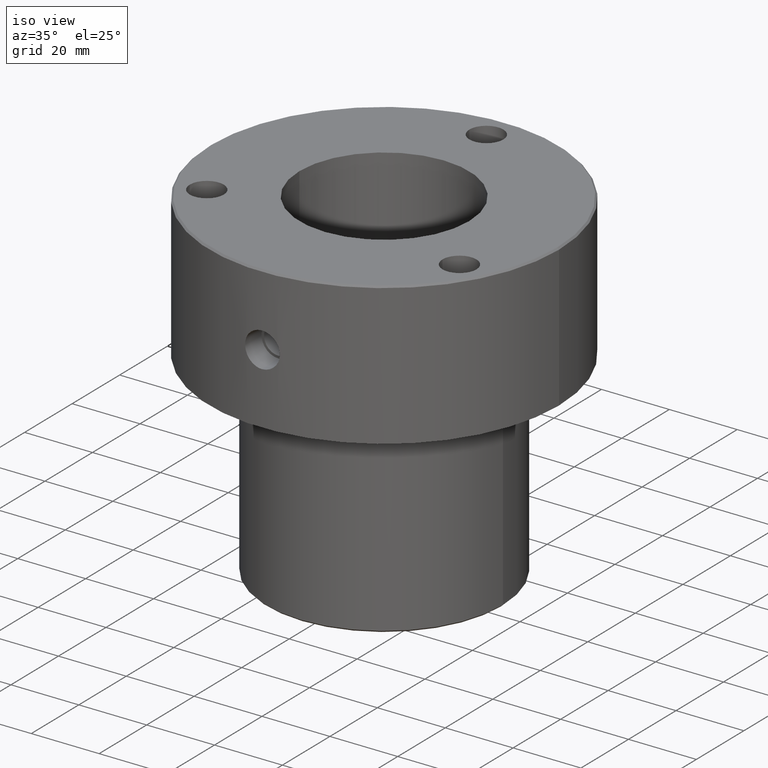
[diagram: clean part render]
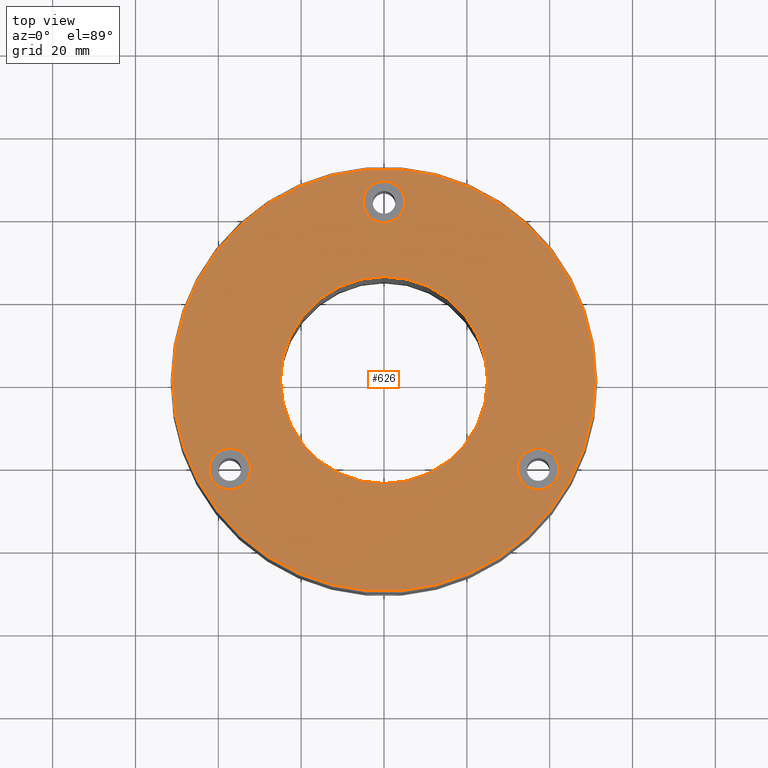
[diagram: tour spotlight — one face highlighted and labeled with its STEP entity id]
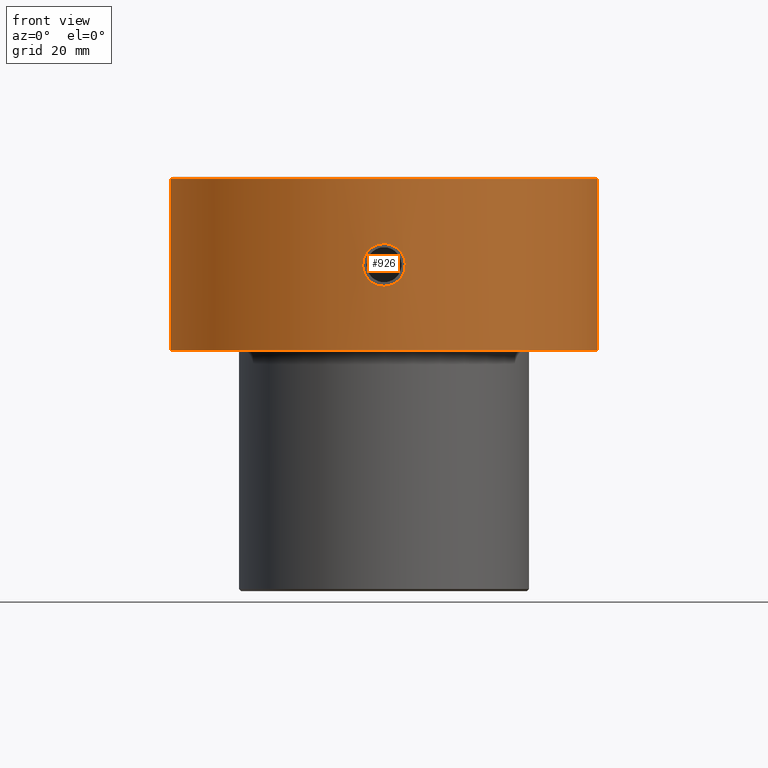
[diagram: tour spotlight — one face highlighted and labeled with its STEP entity id]
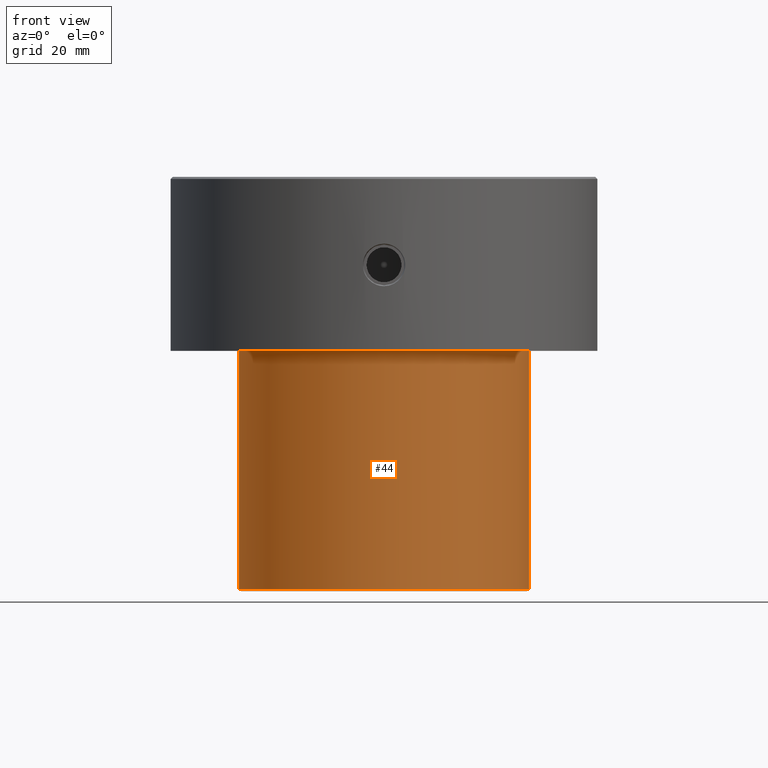
[diagram: tour spotlight — one face highlighted and labeled with its STEP entity id]
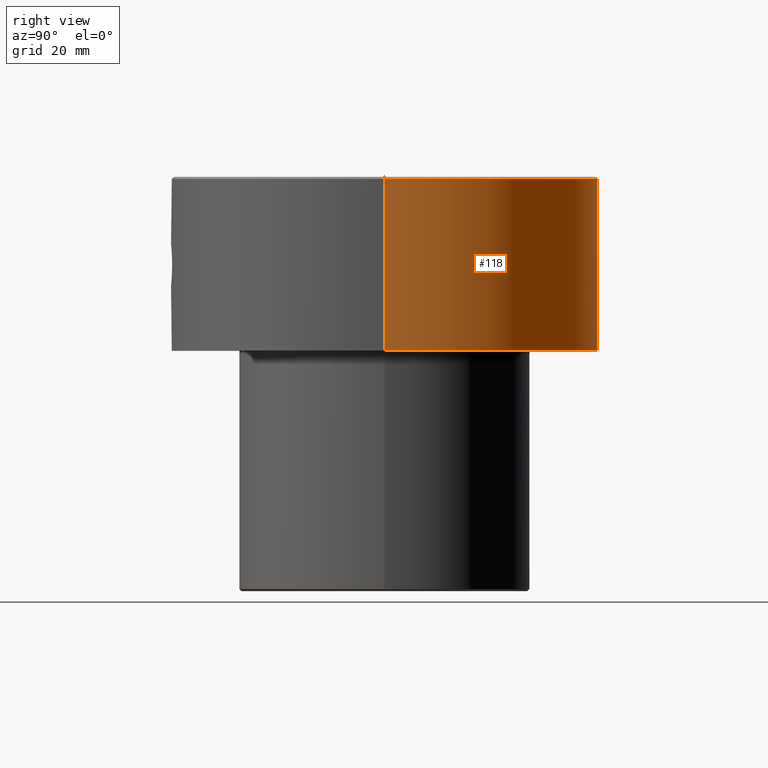
[diagram: tour spotlight — one face highlighted and labeled with its STEP entity id]
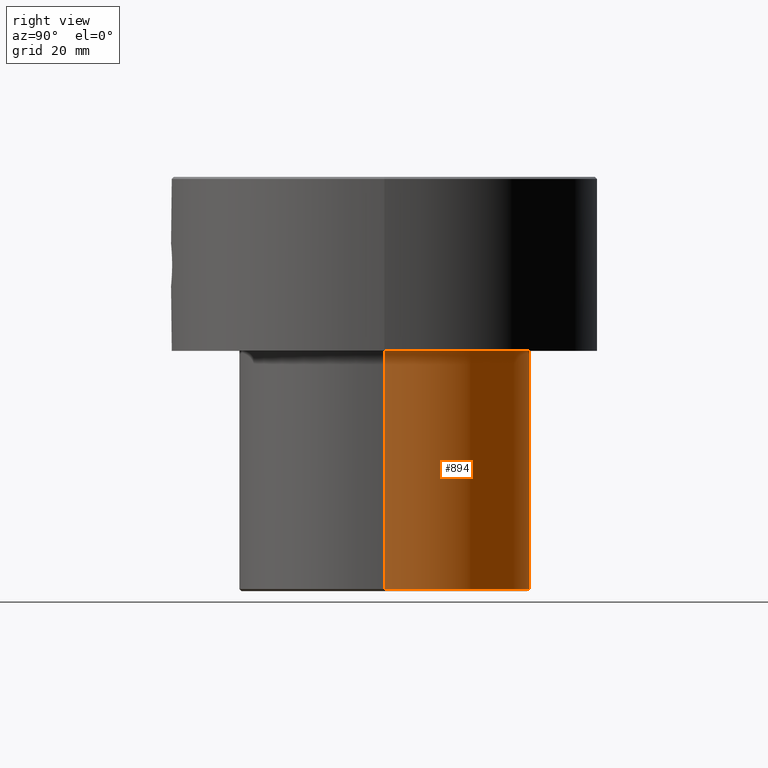
[diagram: tour spotlight — one face highlighted and labeled with its STEP entity id]
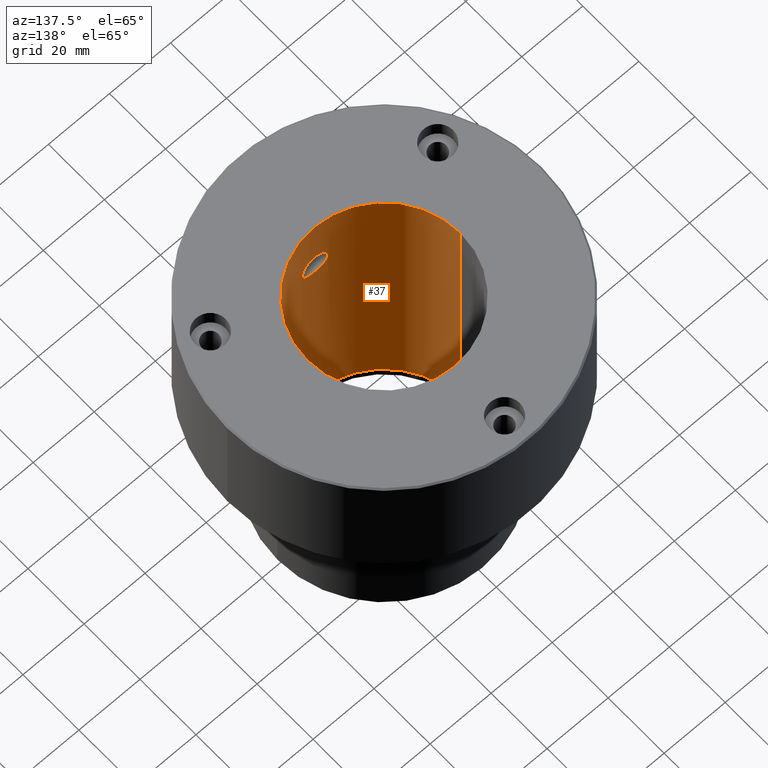
[diagram: tour spotlight — one face highlighted and labeled with its STEP entity id]
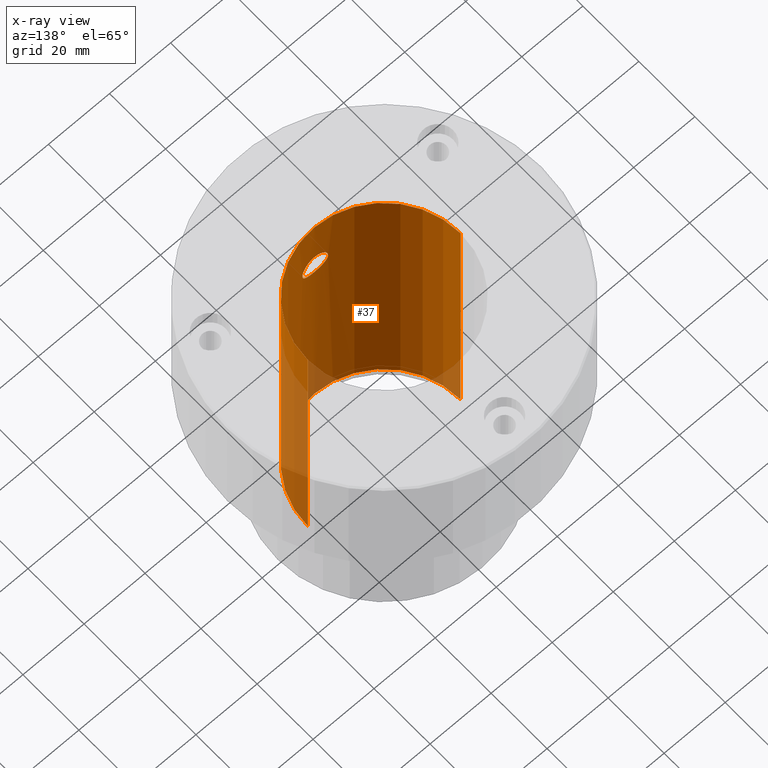
[diagram: x-ray of the same camera — body ghosted, this tour face saturated]
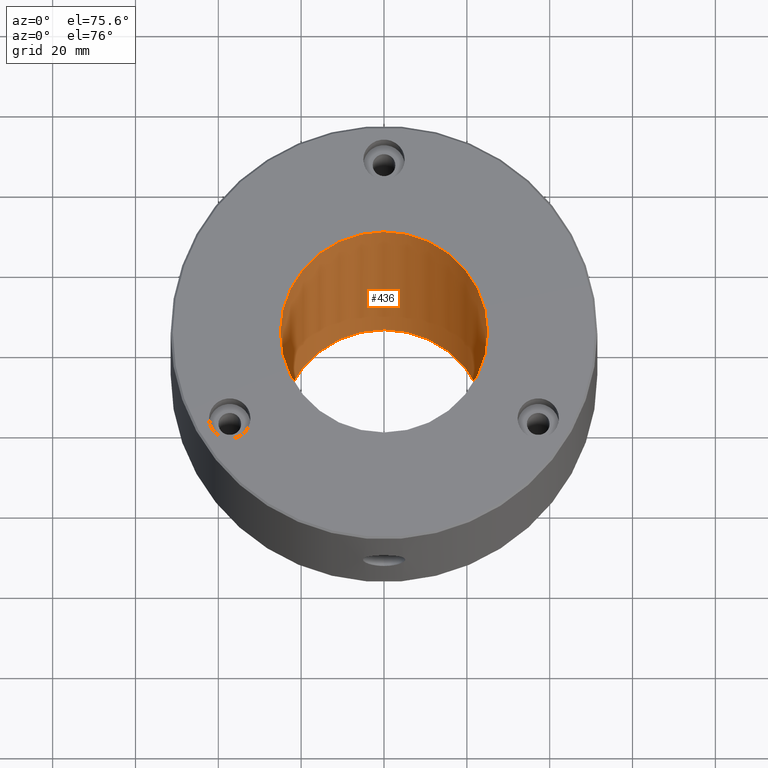
[diagram: tour spotlight — one face highlighted and labeled with its STEP entity id]
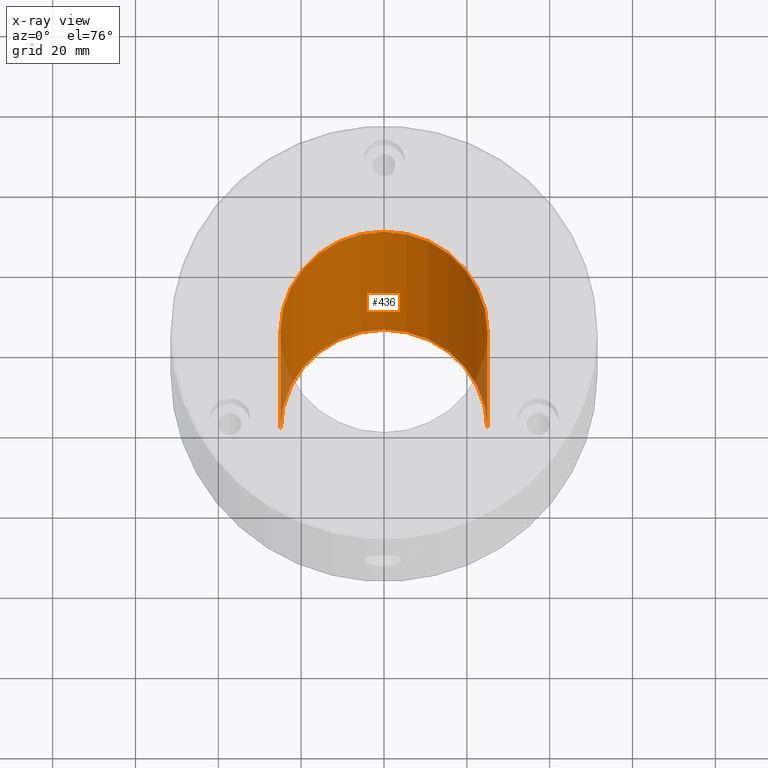
[diagram: x-ray of the same camera — body ghosted, this tour face saturated]
A machine part: a face-by-face anatomy tour. The part has 36 B-rep faces; the first image is the clean iso view, then the 7 largest visible faces are spotlighted one at a time (largest first), each with its STEP entity span.

Face 1 — top view, entity #626. In plain terms, the highlighted planar face has unit normal (0, -0, 1).
Definition (entity closure, byte-faithful):
#8 = DIRECTION ( 'NONE',  ( 1.000000000000000000, 0.000000000000000000, 0.000000000000000000 ) ) ;
#25 = EDGE_LOOP ( 'NONE', ( #722, #236 ) ) ;
#36 = EDGE_CURVE ( 'NONE', #702, #916, #262, .T. ) ;
#40 = DIRECTION ( 'NONE',  ( 1.000000000000000000, 0.000000000000000000, 0.000000000000000000 ) ) ;
#48 = EDGE_CURVE ( 'NONE', #355, #813, #206, .T. ) ;
#90 = DIRECTION ( 'NONE',  ( 1.000000000000000000, 0.000000000000000000, 0.000000000000000000 ) ) ;
#97 = CARTESIAN_POINT ( 'NONE',  ( 0.000000000000000000, 43.00000000000000000, 0.000000000000000000 ) ) ;
#101 = CARTESIAN_POINT ( 'NONE',  ( 0.000000000000000000, 0.000000000000000000, 0.000000000000000000 ) ) ;
#114 = DIRECTION ( 'NONE',  ( -0.000000000000000000, -0.000000000000000000, 1.000000000000000000 ) ) ;
#143 = EDGE_LOOP ( 'NONE', ( #428, #283 ) ) ;
#148 = CIRCLE ( 'NONE', #903, 5.000000000000000888 ) ;
#158 = DIRECTION ( 'NONE',  ( -0.000000000000000000, -0.000000000000000000, 1.000000000000000000 ) ) ;
#168 = CARTESIAN_POINT ( 'NONE',  ( 37.23909236273076573, -21.50000000000015987, 0.000000000000000000 ) ) ;
#183 = CARTESIAN_POINT ( 'NONE',  ( 37.23909236273076573, -21.50000000000015987, 0.000000000000000000 ) ) ;
#185 = VERTEX_POINT ( 'NONE', #536 ) ;
#189 = CIRCLE ( 'NONE', #557, 51.00000000000001421 ) ;
#206 = CIRCLE ( 'NONE', #882, 5.000000000000000888 ) ;
#214 = ORIENTED_EDGE ( 'NONE', *, *, #48, .F. ) ;
#220 = DIRECTION ( 'NONE',  ( 1.000000000000000000, 0.000000000000000000, 0.000000000000000000 ) ) ;
#236 = ORIENTED_EDGE ( 'NONE', *, *, #733, .F. ) ;
#261 = ORIENTED_EDGE ( 'NONE', *, *, #1249, .T. ) ;
#262 = CIRCLE ( 'NONE', #285, 51.00000000000001421 ) ;
#275 = DIRECTION ( 'NONE',  ( -1.000000000000000000, 0.000000000000000000, 0.000000000000000000 ) ) ;
#277 = CARTESIAN_POINT ( 'NONE',  ( 5.000000000000000888, 43.00000000000000000, 0.000000000000000000 ) ) ;
#283 = ORIENTED_EDGE ( 'NONE', *, *, #328, .F. ) ;
#285 = AXIS2_PLACEMENT_3D ( 'NONE', #988, #698, #220 ) ;
#300 = DIRECTION ( 'NONE',  ( -0.000000000000000000, -0.000000000000000000, 1.000000000000000000 ) ) ;
#328 = EDGE_CURVE ( 'NONE', #185, #983, #387, .T. ) ;
#339 = FACE_OUTER_BOUND ( 'NONE', #542, .T. ) ;
#347 = CIRCLE ( 'NONE', #938, 25.00000000000000000 ) ;
#355 = VERTEX_POINT ( 'NONE', #277 ) ;
#364 = AXIS2_PLACEMENT_3D ( 'NONE', #646, #158, #757 ) ;
#387 = CIRCLE ( 'NONE', #725, 5.000000000000004441 ) ;
#394 = CARTESIAN_POINT ( 'NONE',  ( 0.000000000000000000, 0.000000000000000000, 0.000000000000000000 ) ) ;
#402 = DIRECTION ( 'NONE',  ( 0.000000000000000000, 0.000000000000000000, -1.000000000000000000 ) ) ;
#428 = ORIENTED_EDGE ( 'NONE', *, *, #877, .F. ) ;
#498 = CARTESIAN_POINT ( 'NONE',  ( 0.000000000000000000, 0.000000000000000000, 0.000000000000000000 ) ) ;
#506 = DIRECTION ( 'NONE',  ( 1.000000000000000000, 0.000000000000000000, 0.000000000000000000 ) ) ;
#518 = CARTESIAN_POINT ( 'NONE',  ( 0.000000000000000000, 43.00000000000000000, 0.000000000000000000 ) ) ;
#525 = FACE_BOUND ( 'NONE', #25, .T. ) ;
#536 = CARTESIAN_POINT ( 'NONE',  ( 32.23909236273075862, -21.50000000000015987, 0.000000000000000000 ) ) ;
#542 = EDGE_LOOP ( 'NONE', ( #1179, #261 ) ) ;
#557 = AXIS2_PLACEMENT_3D ( 'NONE', #498, #300, #8 ) ;
#568 = DIRECTION ( 'NONE',  ( 1.000000000000000000, 0.000000000000000000, 0.000000000000000000 ) ) ;
#572 = DIRECTION ( 'NONE',  ( 1.000000000000000000, 0.000000000000000000, 0.000000000000000000 ) ) ;
#577 = AXIS2_PLACEMENT_3D ( 'NONE', #168, #760, #568 ) ;
#582 = DIRECTION ( 'NONE',  ( 0.000000000000000000, 0.000000000000000000, -1.000000000000000000 ) ) ;
#590 = EDGE_LOOP ( 'NONE', ( #214, #1066 ) ) ;
#595 = DIRECTION ( 'NONE',  ( -0.000000000000000000, -0.000000000000000000, 1.000000000000000000 ) ) ;
#626 = ADVANCED_FACE ( 'NONE', ( #525, #1232, #853, #1210, #339 ), #860, .T. ) ;
#631 = ORIENTED_EDGE ( 'NONE', *, *, #1148, .T. ) ;
#646 = CARTESIAN_POINT ( 'NONE',  ( -37.23909236273090073, -21.49999999999991118, 0.000000000000000000 ) ) ;
#655 = CIRCLE ( 'NONE', #577, 5.000000000000004441 ) ;
#670 = CARTESIAN_POINT ( 'NONE',  ( -42.23909236273090784, -21.49999999999991118, 0.000000000000000000 ) ) ;
#686 = CARTESIAN_POINT ( 'NONE',  ( 0.000000000000000000, 0.000000000000000000, 0.000000000000000000 ) ) ;
#688 = CARTESIAN_POINT ( 'NONE',  ( 51.00000000000001421, 6.276314845630186598E-15, 0.000000000000000000 ) ) ;
#692 = DIRECTION ( 'NONE',  ( -1.000000000000000000, 0.000000000000000000, 0.000000000000000000 ) ) ;
#698 = DIRECTION ( 'NONE',  ( -0.000000000000000000, -0.000000000000000000, 1.000000000000000000 ) ) ;
#702 = VERTEX_POINT ( 'NONE', #1077 ) ;
#722 = ORIENTED_EDGE ( 'NONE', *, *, #769, .F. ) ;
#725 = AXIS2_PLACEMENT_3D ( 'NONE', #183, #952, #1143 ) ;
#733 = EDGE_CURVE ( 'NONE', #1177, #1239, #1175, .T. ) ;
#757 = DIRECTION ( 'NONE',  ( 1.000000000000000000, 0.000000000000000000, 0.000000000000000000 ) ) ;
#760 = DIRECTION ( 'NONE',  ( -0.000000000000000000, -0.000000000000000000, 1.000000000000000000 ) ) ;
#764 = EDGE_LOOP ( 'NONE', ( #631, #792 ) ) ;
#769 = EDGE_CURVE ( 'NONE', #1239, #1177, #806, .T. ) ;
#792 = ORIENTED_EDGE ( 'NONE', *, *, #1189, .T. ) ;
#806 = CIRCLE ( 'NONE', #364, 5.000000000000004441 ) ;
#813 = VERTEX_POINT ( 'NONE', #1215 ) ;
#853 = FACE_BOUND ( 'NONE', #590, .T. ) ;
#860 = PLANE ( 'NONE',  #1056 ) ;
#874 = CARTESIAN_POINT ( 'NONE',  ( -32.23909236273090073, -21.49999999999991118, 0.000000000000000000 ) ) ;
#877 = EDGE_CURVE ( 'NONE', #983, #185, #655, .T. ) ;
#882 = AXIS2_PLACEMENT_3D ( 'NONE', #518, #906, #40 ) ;
#888 = CARTESIAN_POINT ( 'NONE',  ( -25.00000000000000000, 0.000000000000000000, 0.000000000000000000 ) ) ;
#903 = AXIS2_PLACEMENT_3D ( 'NONE', #97, #595, #572 ) ;
#906 = DIRECTION ( 'NONE',  ( -0.000000000000000000, -0.000000000000000000, 1.000000000000000000 ) ) ;
#916 = VERTEX_POINT ( 'NONE', #688 ) ;
#921 = AXIS2_PLACEMENT_3D ( 'NONE', #101, #582, #275 ) ;
#938 = AXIS2_PLACEMENT_3D ( 'NONE', #686, #402, #692 ) ;
#952 = DIRECTION ( 'NONE',  ( -0.000000000000000000, -0.000000000000000000, 1.000000000000000000 ) ) ;
#969 = DIRECTION ( 'NONE',  ( 0.000000000000000000, -0.000000000000000000, 1.000000000000000000 ) ) ;
#983 = VERTEX_POINT ( 'NONE', #995 ) ;
#984 = CARTESIAN_POINT ( 'NONE',  ( -37.23909236273090073, -21.49999999999991118, 0.000000000000000000 ) ) ;
#988 = CARTESIAN_POINT ( 'NONE',  ( 0.000000000000000000, 0.000000000000000000, 0.000000000000000000 ) ) ;
#995 = CARTESIAN_POINT ( 'NONE',  ( 42.23909236273076573, -21.50000000000015987, 0.000000000000000000 ) ) ;
#1034 = AXIS2_PLACEMENT_3D ( 'NONE', #984, #114, #506 ) ;
#1056 = AXIS2_PLACEMENT_3D ( 'NONE', #394, #969, #90 ) ;
#1066 = ORIENTED_EDGE ( 'NONE', *, *, #1188, .F. ) ;
#1077 = CARTESIAN_POINT ( 'NONE',  ( -51.00000000000001421, 0.000000000000000000, 0.000000000000000000 ) ) ;
#1143 = DIRECTION ( 'NONE',  ( 1.000000000000000000, 0.000000000000000000, 0.000000000000000000 ) ) ;
#1148 = EDGE_CURVE ( 'NONE', #1152, #1212, #1244, .T. ) ;
#1152 = VERTEX_POINT ( 'NONE', #888 ) ;
#1159 = CARTESIAN_POINT ( 'NONE',  ( 25.00000000000000000, 3.061616997868383043E-15, 0.000000000000000000 ) ) ;
#1175 = CIRCLE ( 'NONE', #1034, 5.000000000000004441 ) ;
#1177 = VERTEX_POINT ( 'NONE', #670 ) ;
#1179 = ORIENTED_EDGE ( 'NONE', *, *, #36, .T. ) ;
#1188 = EDGE_CURVE ( 'NONE', #813, #355, #148, .T. ) ;
#1189 = EDGE_CURVE ( 'NONE', #1212, #1152, #347, .T. ) ;
#1210 = FACE_BOUND ( 'NONE', #764, .T. ) ;
#1212 = VERTEX_POINT ( 'NONE', #1159 ) ;
#1215 = CARTESIAN_POINT ( 'NONE',  ( -5.000000000000000888, 43.00000000000000000, 0.000000000000000000 ) ) ;
#1232 = FACE_BOUND ( 'NONE', #143, .T. ) ;
#1239 = VERTEX_POINT ( 'NONE', #874 ) ;
#1244 = CIRCLE ( 'NONE', #921, 25.00000000000000000 ) ;
#1249 = EDGE_CURVE ( 'NONE', #916, #702, #189, .T. ) ;

Face 2 — front view, entity #926. In plain terms, the highlighted cylindrical surface (partial cylindrical patch) has radius 51.5 mm, axis along (-0, -0, 1).
Definition (entity closure, byte-faithful):
#28 = DIRECTION ( 'NONE',  ( 1.000000000000000000, 0.000000000000000000, 0.000000000000000000 ) ) ;
#53 = LINE ( 'NONE', #632, #360 ) ;
#56 = CARTESIAN_POINT ( 'NONE',  ( -3.870388291433632499, -51.35491700579432006, -24.64766394908491520 ) ) ;
#62 = CARTESIAN_POINT ( 'NONE',  ( 4.457634637478083306, -51.30705923410508262, -23.82621273787369631 ) ) ;
#66 = CARTESIAN_POINT ( 'NONE',  ( -4.459652610896620573, -51.30688883444945958, -23.82304282523870143 ) ) ;
#72 = CARTESIAN_POINT ( 'NONE',  ( 1.048222593639576067E-21, -51.50000000000000000, -26.39337300000000042 ) ) ;
#78 = CARTESIAN_POINT ( 'NONE',  ( 4.615458871489047432, -51.29292689371413161, -23.53081845748871359 ) ) ;
#86 = FACE_OUTER_BOUND ( 'NONE', #902, .T. ) ;
#93 = CARTESIAN_POINT ( 'NONE',  ( 0.3358835663762500534, -51.50000000000001421, -16.10662700000000314 ) ) ;
#110 = DIRECTION ( 'NONE',  ( 1.000000000000000000, 0.000000000000000000, 0.000000000000000000 ) ) ;
#132 = CARTESIAN_POINT ( 'NONE',  ( 1.048222593639576067E-21, -51.50000000000000000, -26.39337300000000042 ) ) ;
#139 = CARTESIAN_POINT ( 'NONE',  ( -2.276262927525767310, -51.44988500894436356, -16.63634664762538407 ) ) ;
#153 = CARTESIAN_POINT ( 'NONE',  ( -3.133535059618951291, -51.40533600573779438, -25.33878848935032124 ) ) ;
#157 = CARTESIAN_POINT ( 'NONE',  ( 4.872762613667714682, -51.26912208466235654, -19.59091961400270065 ) ) ;
#161 = CARTESIAN_POINT ( 'NONE',  ( -4.873419098527694615, -51.26905909255087579, -19.59290484552858302 ) ) ;
#163 = EDGE_CURVE ( 'NONE', #1191, #807, #53, .T. ) ;
#167 = CARTESIAN_POINT ( 'NONE',  ( 2.569935440570200846, -51.43605308306254642, -25.70627989238121103 ) ) ;
#187 = AXIS2_PLACEMENT_3D ( 'NONE', #398, #800, #110 ) ;
#191 = LINE ( 'NONE', #965, #597 ) ;
#201 = CARTESIAN_POINT ( 'NONE',  ( -2.716438236506895976, -51.42849729473772413, -16.88179572973227494 ) ) ;
#221 = ORIENTED_EDGE ( 'NONE', *, *, #163, .F. ) ;
#229 = DIRECTION ( 'NONE',  ( 0.000000000000000000, 0.000000000000000000, -1.000000000000000000 ) ) ;
#245 = VERTEX_POINT ( 'NONE', #132 ) ;
#250 = CARTESIAN_POINT ( 'NONE',  ( 3.394848946332763351, -51.38853247271054414, -17.37609873495068413 ) ) ;
#254 = CARTESIAN_POINT ( 'NONE',  ( 2.573071245024807219, -51.43645422318999039, -16.78582650585409297 ) ) ;
#263 = CARTESIAN_POINT ( 'NONE',  ( 4.971852313927572986, -51.25948680529477741, -19.91831370292505454 ) ) ;
#271 = CARTESIAN_POINT ( 'NONE',  ( -0.6752129084959268557, -51.49663065334000578, -26.35984570715628550 ) ) ;
#294 = CARTESIAN_POINT ( 'NONE',  ( -0.3356552540832114517, -51.50000000000000000, -16.10662700000000669 ) ) ;
#295 = EDGE_CURVE ( 'NONE', #505, #245, #706, .T. ) ;
#310 = EDGE_CURVE ( 'NONE', #245, #505, #828, .T. ) ;
#316 = CARTESIAN_POINT ( 'NONE',  ( 0.000000000000000000, 0.000000000000000000, -0.5000000000000004441 ) ) ;
#320 = ORIENTED_EDGE ( 'NONE', *, *, #310, .F. ) ;
#336 = VERTEX_POINT ( 'NONE', #865 ) ;
#337 = CARTESIAN_POINT ( 'NONE',  ( -0.6764116674713784860, -51.49660942567671640, -16.14037076350564703 ) ) ;
#343 = CARTESIAN_POINT ( 'NONE',  ( 4.084600155122266152, -51.33810581497413494, -18.11413077232103319 ) ) ;
#349 = CARTESIAN_POINT ( 'NONE',  ( 1.811917442048592397, -51.46834851635972541, -16.43444993656066089 ) ) ;
#352 = CARTESIAN_POINT ( 'NONE',  ( 5.135613818990137247, -51.24329683683077263, -20.90997058817930210 ) ) ;
#360 = VECTOR ( 'NONE', #429, 1000.000000000000000 ) ;
#362 = CARTESIAN_POINT ( 'NONE',  ( 4.457834078572474823, -51.30704417937777606, -18.67399679769003029 ) ) ;
#376 = ORIENTED_EDGE ( 'NONE', *, *, #649, .T. ) ;
#377 = CARTESIAN_POINT ( 'NONE',  ( 6.298815310959837949E-16, -51.50000000000000000, -16.10662700000000314 ) ) ;
#398 = CARTESIAN_POINT ( 'NONE',  ( 0.000000000000000000, 0.000000000000000000, -42.00000000000000000 ) ) ;
#408 = CARTESIAN_POINT ( 'NONE',  ( 6.298815310959837949E-16, -51.50000000000000000, -16.10662700000000314 ) ) ;
#429 = DIRECTION ( 'NONE',  ( -0.000000000000000000, -0.000000000000000000, 1.000000000000000000 ) ) ;
#449 = CARTESIAN_POINT ( 'NONE',  ( -1.335029987352562175, -51.48375060202188536, -26.22796783234396045 ) ) ;
#451 = CARTESIAN_POINT ( 'NONE',  ( -51.50000000000000000, 6.306931015608868807E-15, -0.5000000000000004441 ) ) ;
#454 = CARTESIAN_POINT ( 'NONE',  ( -5.103538412688853221, -51.24654388850566988, -21.91707525582282656 ) ) ;
#457 = CARTESIAN_POINT ( 'NONE',  ( 2.272775390774277149, -51.45004000926935106, -25.86538700450402928 ) ) ;
#462 = CARTESIAN_POINT ( 'NONE',  ( 5.102355235093170904, -51.24666100736852314, -21.92415948591494868 ) ) ;
#470 = CIRCLE ( 'NONE', #187, 51.50000000000000000 ) ;
#482 = CARTESIAN_POINT ( 'NONE',  ( -51.50000000000000000, 6.306931015608868807E-15, -42.00000000000000000 ) ) ;
#502 = DIRECTION ( 'NONE',  ( -0.000000000000000000, -0.000000000000000000, 1.000000000000000000 ) ) ;
#505 = VERTEX_POINT ( 'NONE', #408 ) ;
#522 = CARTESIAN_POINT ( 'NONE',  ( -3.133331818491418730, -51.40534713884964191, -17.16107801846559511 ) ) ;
#543 = CARTESIAN_POINT ( 'NONE',  ( -4.084952459583112372, -51.33808047330343527, -24.38557191876200392 ) ) ;
#547 = CARTESIAN_POINT ( 'NONE',  ( -4.970545045048587518, -51.25961420767220744, -19.91315521511948816 ) ) ;
#549 = CARTESIAN_POINT ( 'NONE',  ( 1.166101079403363050, -51.48706274633448032, -16.23811354126406670 ) ) ;
#556 = CARTESIAN_POINT ( 'NONE',  ( 0.3353013208440320803, -51.50000000000000000, -26.39337300000000042 ) ) ;
#562 = CARTESIAN_POINT ( 'NONE',  ( 2.716055077494536008, -51.42852049064780573, -25.61849436601665531 ) ) ;
#594 = CARTESIAN_POINT ( 'NONE',  ( -4.083870080060343355, -51.33816113792820346, -18.11335087147658740 ) ) ;
#597 = VECTOR ( 'NONE', #607, 1000.000000000000000 ) ;
#599 = AXIS2_PLACEMENT_3D ( 'NONE', #316, #229, #821 ) ;
#606 = ORIENTED_EDGE ( 'NONE', *, *, #295, .F. ) ;
#607 = DIRECTION ( 'NONE',  ( -0.000000000000000000, -0.000000000000000000, 1.000000000000000000 ) ) ;
#610 = ORIENTED_EDGE ( 'NONE', *, *, #980, .T. ) ;
#623 = ORIENTED_EDGE ( 'NONE', *, *, #1032, .T. ) ;
#632 = CARTESIAN_POINT ( 'NONE',  ( -51.50000000000000000, 6.306931015608868807E-15, 0.000000000000000000 ) ) ;
#642 = CARTESIAN_POINT ( 'NONE',  ( -5.135801780001337136, -51.24327799907001690, -21.58331015971613454 ) ) ;
#645 = CARTESIAN_POINT ( 'NONE',  ( 1.331544956519863598, -51.48303611421331993, -16.27964254438147762 ) ) ;
#649 = EDGE_CURVE ( 'NONE', #977, #336, #191, .T. ) ;
#657 = CARTESIAN_POINT ( 'NONE',  ( 4.615444507740382285, -51.29292706423705539, -18.96935145740248529 ) ) ;
#664 = CARTESIAN_POINT ( 'NONE',  ( -4.616570975055003245, -51.29282509647570976, -18.97167582135471875 ) ) ;
#690 = CARTESIAN_POINT ( 'NONE',  ( -1.334511350930534856, -51.48375855101124898, -16.27195165724317860 ) ) ;
#706 = B_SPLINE_CURVE_WITH_KNOTS ( 'NONE', 3,
 ( #794, #294, #337, #690, #972, #1070, #139, #1167, #201, #522, #918, #739, #594, #1094, #664, #161, #547, #1031, #759, #642, #454, #923, #946, #1027, #66, #543, #56, #1128, #153, #850, #836, #756, #449, #271, #1039, #939 ),
 .UNSPECIFIED., .F., .F.,
 ( 4, 2, 2, 2, 2, 2, 2, 2, 2, 2, 2, 2, 2, 2, 2, 2, 2, 4 ),
 ( 0.02019024682009542063, 0.02119471988690419320, 0.02219919295371296925, 0.02270142948711735553, 0.02320366602052174529, 0.02420813908733053174, 0.02521261215413931472, 0.02621708522094810118, 0.02722155828775688763, 0.02822603135456567408, 0.02923050442137446053, 0.03023497748818324699, 0.03123945055499203344, 0.03224392362180081989, 0.03324839668860960634, 0.03425286975541839279, 0.03525734282222717925, 0.03626181588903596570 ),
 .UNSPECIFIED. ) ;
#739 = CARTESIAN_POINT ( 'NONE',  ( -3.871928745888957746, -51.35480031565879955, -17.85409872166449219 ) ) ;
#745 = CARTESIAN_POINT ( 'NONE',  ( 3.136210703289033397, -51.40518342140642005, -25.33692630218639508 ) ) ;
#751 = CARTESIAN_POINT ( 'NONE',  ( 1.654020674870432028, -51.47368487990468111, -16.37775195547085971 ) ) ;
#756 = CARTESIAN_POINT ( 'NONE',  ( -1.655189781649638592, -51.47433215661397554, -26.13054333015325170 ) ) ;
#759 = CARTESIAN_POINT ( 'NONE',  ( -5.135571099062696376, -51.24330111829166157, -20.91314367667845531 ) ) ;
#768 = CARTESIAN_POINT ( 'NONE',  ( 0.6693026806619063462, -51.49672549019852141, -26.36080848415118894 ) ) ;
#777 = CARTESIAN_POINT ( 'NONE',  ( 0.000000000000000000, 0.000000000000000000, 0.000000000000000000 ) ) ;
#794 = CARTESIAN_POINT ( 'NONE',  ( 6.298815310959837949E-16, -51.50000000000000000, -16.10662700000000314 ) ) ;
#800 = DIRECTION ( 'NONE',  ( -0.000000000000000000, -0.000000000000000000, 1.000000000000000000 ) ) ;
#807 = VERTEX_POINT ( 'NONE', #451 ) ;
#821 = DIRECTION ( 'NONE',  ( 1.000000000000000000, 0.000000000000000000, 0.000000000000000000 ) ) ;
#828 = B_SPLINE_CURVE_WITH_KNOTS ( 'NONE', 3,
 ( #72, #556, #768, #845, #1214, #1138, #457, #167, #562, #745, #1234, #1132, #928, #62, #78, #1125, #1044, #856, #1226, #462, #1240, #352, #838, #263, #157, #657, #362, #343, #1116, #250, #1023, #254, #1218, #349, #751, #645, #549, #933, #93, #377 ),
 .UNSPECIFIED., .F., .F.,
 ( 4, 2, 2, 2, 2, 2, 2, 2, 2, 2, 2, 2, 2, 2, 2, 2, 2, 2, 2, 4 ),
 ( 0.004107745889543262287, 0.005112902197702762913, 0.006118058505862263539, 0.006620636659942015154, 0.007123214814021767635, 0.008128371122181272598, 0.009133527430340777561, 0.01013868373850028252, 0.01064126189258003501, 0.01114384004665978575, 0.01214899635481930112, 0.01315415266297881650, 0.01415930897113833187, 0.01516446527929784724, 0.01616962158745736261, 0.01717477789561687798, 0.01817993420377638988, 0.01868251235785614930, 0.01918509051193590526, 0.02019024682009542063 ),
 .UNSPECIFIED. ) ;
#836 = CARTESIAN_POINT ( 'NONE',  ( -2.276103841329510047, -51.45061589025135618, -25.87292166544103367 ) ) ;
#838 = CARTESIAN_POINT ( 'NONE',  ( 5.102417383276221408, -51.24665491347251844, -20.57613492145341283 ) ) ;
#845 = CARTESIAN_POINT ( 'NONE',  ( 1.334615805379071318, -51.48377902741052736, -26.22826705002438175 ) ) ;
#850 = CARTESIAN_POINT ( 'NONE',  ( -2.577214110619729048, -51.43622827599907055, -25.71146961298348899 ) ) ;
#856 = CARTESIAN_POINT ( 'NONE',  ( 4.963928581033117737, -51.26023617090775986, -22.57976408175084515 ) ) ;
#865 = CARTESIAN_POINT ( 'NONE',  ( 51.50000000000000000, 0.000000000000000000, -0.5000000000000004441 ) ) ;
#866 = FACE_BOUND ( 'NONE', #1096, .T. ) ;
#889 = CARTESIAN_POINT ( 'NONE',  ( 51.50000000000000000, 0.000000000000000000, -42.00000000000000000 ) ) ;
#902 = EDGE_LOOP ( 'NONE', ( #221, #623, #376, #610 ) ) ;
#918 = CARTESIAN_POINT ( 'NONE',  ( -3.394174496679403408, -51.38858751863610053, -17.37521538122372178 ) ) ;
#923 = CARTESIAN_POINT ( 'NONE',  ( -4.972038158280625453, -51.25946938272897313, -22.58188047283348254 ) ) ;
#926 = ADVANCED_FACE ( 'NONE', ( #86, #866 ), #1251, .T. ) ;
#928 = CARTESIAN_POINT ( 'NONE',  ( 4.085644507848206430, -51.33802044068998782, -24.38439208705906225 ) ) ;
#933 = CARTESIAN_POINT ( 'NONE',  ( 0.6694074120081875412, -51.49671427971136950, -16.13930995566505899 ) ) ;
#939 = CARTESIAN_POINT ( 'NONE',  ( 1.048222593639576067E-21, -51.50000000000000000, -26.39337300000000042 ) ) ;
#946 = CARTESIAN_POINT ( 'NONE',  ( -4.874176289879716961, -51.26898510490826055, -22.90456670123846195 ) ) ;
#957 = CIRCLE ( 'NONE', #599, 51.50000000000000000 ) ;
#965 = CARTESIAN_POINT ( 'NONE',  ( 51.50000000000000000, 0.000000000000000000, 0.000000000000000000 ) ) ;
#972 = CARTESIAN_POINT ( 'NONE',  ( -1.654922887784929353, -51.47434792857442432, -16.36927503999904232 ) ) ;
#977 = VERTEX_POINT ( 'NONE', #889 ) ;
#980 = EDGE_CURVE ( 'NONE', #336, #807, #957, .T. ) ;
#994 = AXIS2_PLACEMENT_3D ( 'NONE', #777, #502, #28 ) ;
#1023 = CARTESIAN_POINT ( 'NONE',  ( 3.136185333612287351, -51.40519293067121254, -17.16291568919610100 ) ) ;
#1027 = CARTESIAN_POINT ( 'NONE',  ( -4.618922364095463529, -51.29261140151269416, -23.52332559415824065 ) ) ;
#1031 = CARTESIAN_POINT ( 'NONE',  ( -5.102074559861904390, -51.24668966821032967, -20.57299764770509398 ) ) ;
#1032 = EDGE_CURVE ( 'NONE', #1191, #977, #470, .T. ) ;
#1039 = CARTESIAN_POINT ( 'NONE',  ( -0.3350734043244900651, -51.50000000000000000, -26.39337299999999331 ) ) ;
#1044 = CARTESIAN_POINT ( 'NONE',  ( 4.866411394179904981, -51.26958591014203392, -22.90220319035053365 ) ) ;
#1070 = CARTESIAN_POINT ( 'NONE',  ( -2.122390397132325468, -51.45648428634891758, -16.56333713622720438 ) ) ;
#1094 = CARTESIAN_POINT ( 'NONE',  ( -4.455594510083999538, -51.30723595572462870, -18.67032462210925203 ) ) ;
#1096 = EDGE_LOOP ( 'NONE', ( #320, #606 ) ) ;
#1116 = CARTESIAN_POINT ( 'NONE',  ( 3.868090047908823159, -51.35507909105496793, -17.85004502327221942 ) ) ;
#1125 = CARTESIAN_POINT ( 'NONE',  ( 4.809111397820574396, -51.27500999554197136, -23.06273107317452187 ) ) ;
#1128 = CARTESIAN_POINT ( 'NONE',  ( -3.392389233153937589, -51.38870597212261515, -25.12635399936055691 ) ) ;
#1132 = CARTESIAN_POINT ( 'NONE',  ( 3.868875284666686731, -51.35502223870823713, -24.64913067251421097 ) ) ;
#1138 = CARTESIAN_POINT ( 'NONE',  ( 2.121122820814869137, -51.45653307363946993, -25.93719350975683113 ) ) ;
#1167 = CARTESIAN_POINT ( 'NONE',  ( -2.572853543023277734, -51.43590637866683579, -16.79541911679499222 ) ) ;
#1191 = VERTEX_POINT ( 'NONE', #482 ) ;
#1214 = CARTESIAN_POINT ( 'NONE',  ( 1.657110490166086914, -51.47426363476713362, -26.12980794330655954 ) ) ;
#1218 = CARTESIAN_POINT ( 'NONE',  ( 2.275792585293514136, -51.45062238089825257, -16.62701780103406080 ) ) ;
#1226 = CARTESIAN_POINT ( 'NONE',  ( 5.004541009587042844, -51.25627417810104447, -22.41700138948911913 ) ) ;
#1234 = CARTESIAN_POINT ( 'NONE',  ( 3.394642827361414206, -51.38854838561958616, -25.12414554227154539 ) ) ;
#1240 = CARTESIAN_POINT ( 'NONE',  ( 5.135759432686824333, -51.24328224318696101, -21.58781631127578393 ) ) ;
#1251 = CYLINDRICAL_SURFACE ( 'NONE', #994, 51.50000000000000000 ) ;

Face 3 — front view, entity #44. In plain terms, the highlighted cylindrical surface (partial cylindrical patch) has radius 35 mm, axis along (-0, -0, 1).
Definition (entity closure, byte-faithful):
#13 = AXIS2_PLACEMENT_3D ( 'NONE', #1183, #608, #713 ) ;
#31 = CIRCLE ( 'NONE', #748, 35.00000000000000000 ) ;
#44 = ADVANCED_FACE ( 'NONE', ( #797 ), #211, .T. ) ;
#100 = CARTESIAN_POINT ( 'NONE',  ( 0.000000000000000000, 0.000000000000000000, -42.00000000000000000 ) ) ;
#123 = VECTOR ( 'NONE', #691, 1000.000000000000000 ) ;
#133 = EDGE_CURVE ( 'NONE', #292, #296, #653, .T. ) ;
#152 = ORIENTED_EDGE ( 'NONE', *, *, #530, .T. ) ;
#211 = CYLINDRICAL_SURFACE ( 'NONE', #13, 35.00000000000000000 ) ;
#239 = ORIENTED_EDGE ( 'NONE', *, *, #444, .F. ) ;
#281 = CARTESIAN_POINT ( 'NONE',  ( -35.00000000000000000, 4.286263797015736496E-15, 0.000000000000000000 ) ) ;
#292 = VERTEX_POINT ( 'NONE', #1009 ) ;
#296 = VERTEX_POINT ( 'NONE', #357 ) ;
#301 = VERTEX_POINT ( 'NONE', #651 ) ;
#357 = CARTESIAN_POINT ( 'NONE',  ( 35.00000000000000000, 0.000000000000000000, -42.00000000000000000 ) ) ;
#425 = DIRECTION ( 'NONE',  ( -1.000000000000000000, 0.000000000000000000, 0.000000000000000000 ) ) ;
#444 = EDGE_CURVE ( 'NONE', #301, #292, #476, .T. ) ;
#476 = LINE ( 'NONE', #281, #123 ) ;
#490 = ORIENTED_EDGE ( 'NONE', *, *, #133, .F. ) ;
#509 = LINE ( 'NONE', #1204, #885 ) ;
#530 = EDGE_CURVE ( 'NONE', #301, #932, #31, .T. ) ;
#581 = CARTESIAN_POINT ( 'NONE',  ( 0.000000000000000000, 0.000000000000000000, -99.50000000000004263 ) ) ;
#608 = DIRECTION ( 'NONE',  ( -0.000000000000000000, -0.000000000000000000, 1.000000000000000000 ) ) ;
#651 = CARTESIAN_POINT ( 'NONE',  ( -35.00000000000000000, 4.286263797015736496E-15, -99.50000000000004263 ) ) ;
#653 = CIRCLE ( 'NONE', #1154, 35.00000000000000000 ) ;
#676 = DIRECTION ( 'NONE',  ( -0.000000000000000000, -0.000000000000000000, 1.000000000000000000 ) ) ;
#691 = DIRECTION ( 'NONE',  ( -0.000000000000000000, -0.000000000000000000, 1.000000000000000000 ) ) ;
#713 = DIRECTION ( 'NONE',  ( 1.000000000000000000, 0.000000000000000000, 0.000000000000000000 ) ) ;
#748 = AXIS2_PLACEMENT_3D ( 'NONE', #581, #1187, #425 ) ;
#797 = FACE_OUTER_BOUND ( 'NONE', #1150, .T. ) ;
#885 = VECTOR ( 'NONE', #898, 1000.000000000000000 ) ;
#898 = DIRECTION ( 'NONE',  ( -0.000000000000000000, -0.000000000000000000, 1.000000000000000000 ) ) ;
#932 = VERTEX_POINT ( 'NONE', #1076 ) ;
#1009 = CARTESIAN_POINT ( 'NONE',  ( -35.00000000000000000, 4.286263797015736496E-15, -42.00000000000000000 ) ) ;
#1038 = ORIENTED_EDGE ( 'NONE', *, *, #1121, .T. ) ;
#1076 = CARTESIAN_POINT ( 'NONE',  ( 35.00000000000000000, 0.000000000000000000, -99.50000000000004263 ) ) ;
#1121 = EDGE_CURVE ( 'NONE', #932, #296, #509, .T. ) ;
#1150 = EDGE_LOOP ( 'NONE', ( #239, #152, #1038, #490 ) ) ;
#1154 = AXIS2_PLACEMENT_3D ( 'NONE', #100, #676, #1243 ) ;
#1183 = CARTESIAN_POINT ( 'NONE',  ( 0.000000000000000000, 0.000000000000000000, 0.000000000000000000 ) ) ;
#1187 = DIRECTION ( 'NONE',  ( -0.000000000000000000, -0.000000000000000000, 1.000000000000000000 ) ) ;
#1204 = CARTESIAN_POINT ( 'NONE',  ( 35.00000000000000000, 0.000000000000000000, 0.000000000000000000 ) ) ;
#1243 = DIRECTION ( 'NONE',  ( 1.000000000000000000, 0.000000000000000000, 0.000000000000000000 ) ) ;

Face 4 — right view, entity #118. In plain terms, the highlighted cylindrical surface (partial cylindrical patch) has radius 51.5 mm, axis along (-0, -0, 1).
Definition (entity closure, byte-faithful):
#53 = LINE ( 'NONE', #632, #360 ) ;
#65 = CIRCLE ( 'NONE', #1012, 51.50000000000000000 ) ;
#118 = ADVANCED_FACE ( 'NONE', ( #661 ), #1229, .T. ) ;
#163 = EDGE_CURVE ( 'NONE', #1191, #807, #53, .T. ) ;
#191 = LINE ( 'NONE', #965, #597 ) ;
#204 = EDGE_CURVE ( 'NONE', #807, #336, #65, .T. ) ;
#228 = CARTESIAN_POINT ( 'NONE',  ( 0.000000000000000000, 0.000000000000000000, -0.5000000000000004441 ) ) ;
#244 = ORIENTED_EDGE ( 'NONE', *, *, #430, .T. ) ;
#257 = CARTESIAN_POINT ( 'NONE',  ( 0.000000000000000000, 0.000000000000000000, -42.00000000000000000 ) ) ;
#336 = VERTEX_POINT ( 'NONE', #865 ) ;
#353 = CARTESIAN_POINT ( 'NONE',  ( 0.000000000000000000, 0.000000000000000000, 0.000000000000000000 ) ) ;
#360 = VECTOR ( 'NONE', #429, 1000.000000000000000 ) ;
#429 = DIRECTION ( 'NONE',  ( -0.000000000000000000, -0.000000000000000000, 1.000000000000000000 ) ) ;
#430 = EDGE_CURVE ( 'NONE', #977, #1191, #553, .T. ) ;
#451 = CARTESIAN_POINT ( 'NONE',  ( -51.50000000000000000, 6.306931015608868807E-15, -0.5000000000000004441 ) ) ;
#482 = CARTESIAN_POINT ( 'NONE',  ( -51.50000000000000000, 6.306931015608868807E-15, -42.00000000000000000 ) ) ;
#492 = ORIENTED_EDGE ( 'NONE', *, *, #163, .T. ) ;
#553 = CIRCLE ( 'NONE', #654, 51.50000000000000000 ) ;
#555 = ORIENTED_EDGE ( 'NONE', *, *, #649, .F. ) ;
#597 = VECTOR ( 'NONE', #607, 1000.000000000000000 ) ;
#607 = DIRECTION ( 'NONE',  ( -0.000000000000000000, -0.000000000000000000, 1.000000000000000000 ) ) ;
#614 = DIRECTION ( 'NONE',  ( 1.000000000000000000, 0.000000000000000000, 0.000000000000000000 ) ) ;
#621 = DIRECTION ( 'NONE',  ( 0.000000000000000000, 0.000000000000000000, -1.000000000000000000 ) ) ;
#632 = CARTESIAN_POINT ( 'NONE',  ( -51.50000000000000000, 6.306931015608868807E-15, 0.000000000000000000 ) ) ;
#649 = EDGE_CURVE ( 'NONE', #977, #336, #191, .T. ) ;
#654 = AXIS2_PLACEMENT_3D ( 'NONE', #257, #1037, #1237 ) ;
#661 = FACE_OUTER_BOUND ( 'NONE', #1060, .T. ) ;
#807 = VERTEX_POINT ( 'NONE', #451 ) ;
#852 = DIRECTION ( 'NONE',  ( 1.000000000000000000, 0.000000000000000000, 0.000000000000000000 ) ) ;
#865 = CARTESIAN_POINT ( 'NONE',  ( 51.50000000000000000, 0.000000000000000000, -0.5000000000000004441 ) ) ;
#889 = CARTESIAN_POINT ( 'NONE',  ( 51.50000000000000000, 0.000000000000000000, -42.00000000000000000 ) ) ;
#965 = CARTESIAN_POINT ( 'NONE',  ( 51.50000000000000000, 0.000000000000000000, 0.000000000000000000 ) ) ;
#977 = VERTEX_POINT ( 'NONE', #889 ) ;
#990 = AXIS2_PLACEMENT_3D ( 'NONE', #353, #1147, #852 ) ;
#1012 = AXIS2_PLACEMENT_3D ( 'NONE', #228, #621, #614 ) ;
#1037 = DIRECTION ( 'NONE',  ( -0.000000000000000000, -0.000000000000000000, 1.000000000000000000 ) ) ;
#1060 = EDGE_LOOP ( 'NONE', ( #244, #492, #1072, #555 ) ) ;
#1072 = ORIENTED_EDGE ( 'NONE', *, *, #204, .T. ) ;
#1147 = DIRECTION ( 'NONE',  ( -0.000000000000000000, -0.000000000000000000, 1.000000000000000000 ) ) ;
#1191 = VERTEX_POINT ( 'NONE', #482 ) ;
#1229 = CYLINDRICAL_SURFACE ( 'NONE', #990, 51.50000000000000000 ) ;
#1237 = DIRECTION ( 'NONE',  ( 1.000000000000000000, 0.000000000000000000, 0.000000000000000000 ) ) ;

Face 5 — right view, entity #894. In plain terms, the highlighted cylindrical surface (partial cylindrical patch) has radius 35 mm, axis along (-0, -0, 1).
Definition (entity closure, byte-faithful):
#61 = ORIENTED_EDGE ( 'NONE', *, *, #444, .T. ) ;
#123 = VECTOR ( 'NONE', #691, 1000.000000000000000 ) ;
#195 = FACE_OUTER_BOUND ( 'NONE', #1050, .T. ) ;
#212 = AXIS2_PLACEMENT_3D ( 'NONE', #1153, #1134, #1041 ) ;
#281 = CARTESIAN_POINT ( 'NONE',  ( -35.00000000000000000, 4.286263797015736496E-15, 0.000000000000000000 ) ) ;
#292 = VERTEX_POINT ( 'NONE', #1009 ) ;
#296 = VERTEX_POINT ( 'NONE', #357 ) ;
#301 = VERTEX_POINT ( 'NONE', #651 ) ;
#314 = ORIENTED_EDGE ( 'NONE', *, *, #864, .T. ) ;
#357 = CARTESIAN_POINT ( 'NONE',  ( 35.00000000000000000, 0.000000000000000000, -42.00000000000000000 ) ) ;
#444 = EDGE_CURVE ( 'NONE', #301, #292, #476, .T. ) ;
#453 = CIRCLE ( 'NONE', #703, 35.00000000000000000 ) ;
#458 = DIRECTION ( 'NONE',  ( -0.000000000000000000, -0.000000000000000000, 1.000000000000000000 ) ) ;
#473 = CARTESIAN_POINT ( 'NONE',  ( 0.000000000000000000, 0.000000000000000000, -42.00000000000000000 ) ) ;
#476 = LINE ( 'NONE', #281, #123 ) ;
#495 = AXIS2_PLACEMENT_3D ( 'NONE', #665, #947, #1162 ) ;
#509 = LINE ( 'NONE', #1204, #885 ) ;
#566 = ORIENTED_EDGE ( 'NONE', *, *, #1121, .F. ) ;
#651 = CARTESIAN_POINT ( 'NONE',  ( -35.00000000000000000, 4.286263797015736496E-15, -99.50000000000004263 ) ) ;
#665 = CARTESIAN_POINT ( 'NONE',  ( 0.000000000000000000, 0.000000000000000000, -99.50000000000004263 ) ) ;
#691 = DIRECTION ( 'NONE',  ( -0.000000000000000000, -0.000000000000000000, 1.000000000000000000 ) ) ;
#703 = AXIS2_PLACEMENT_3D ( 'NONE', #473, #458, #1235 ) ;
#854 = EDGE_CURVE ( 'NONE', #296, #292, #453, .T. ) ;
#864 = EDGE_CURVE ( 'NONE', #932, #301, #1036, .T. ) ;
#885 = VECTOR ( 'NONE', #898, 1000.000000000000000 ) ;
#894 = ADVANCED_FACE ( 'NONE', ( #195 ), #961, .T. ) ;
#898 = DIRECTION ( 'NONE',  ( -0.000000000000000000, -0.000000000000000000, 1.000000000000000000 ) ) ;
#932 = VERTEX_POINT ( 'NONE', #1076 ) ;
#947 = DIRECTION ( 'NONE',  ( -0.000000000000000000, -0.000000000000000000, 1.000000000000000000 ) ) ;
#961 = CYLINDRICAL_SURFACE ( 'NONE', #212, 35.00000000000000000 ) ;
#1009 = CARTESIAN_POINT ( 'NONE',  ( -35.00000000000000000, 4.286263797015736496E-15, -42.00000000000000000 ) ) ;
#1036 = CIRCLE ( 'NONE', #495, 35.00000000000000000 ) ;
#1041 = DIRECTION ( 'NONE',  ( 1.000000000000000000, 0.000000000000000000, 0.000000000000000000 ) ) ;
#1050 = EDGE_LOOP ( 'NONE', ( #314, #61, #1082, #566 ) ) ;
#1076 = CARTESIAN_POINT ( 'NONE',  ( 35.00000000000000000, 0.000000000000000000, -99.50000000000004263 ) ) ;
#1082 = ORIENTED_EDGE ( 'NONE', *, *, #854, .F. ) ;
#1121 = EDGE_CURVE ( 'NONE', #932, #296, #509, .T. ) ;
#1134 = DIRECTION ( 'NONE',  ( -0.000000000000000000, -0.000000000000000000, 1.000000000000000000 ) ) ;
#1153 = CARTESIAN_POINT ( 'NONE',  ( 0.000000000000000000, 0.000000000000000000, 0.000000000000000000 ) ) ;
#1162 = DIRECTION ( 'NONE',  ( -1.000000000000000000, 0.000000000000000000, 0.000000000000000000 ) ) ;
#1204 = CARTESIAN_POINT ( 'NONE',  ( 35.00000000000000000, 0.000000000000000000, 0.000000000000000000 ) ) ;
#1235 = DIRECTION ( 'NONE',  ( 1.000000000000000000, 0.000000000000000000, 0.000000000000000000 ) ) ;

Face 6 — auxiliary view, entity #37. An x-ray twin of the same camera follows (body ghosted, this face saturated) — the face is partly hidden behind the body. In plain terms, the highlighted cylindrical surface (partial cylindrical patch) has radius 25 mm, axis along (-0, -0, -1).
Definition (entity closure, byte-faithful):
#6 = CARTESIAN_POINT ( 'NONE',  ( -0.5546946996464188206, -24.99533018735855450, -25.43896704401492670 ) ) ;
#7 = CARTESIAN_POINT ( 'NONE',  ( 3.999816144338788071, -24.67818495383058419, -22.61193991712017137 ) ) ;
#9 = VERTEX_POINT ( 'NONE', #802 ) ;
#11 = CARTESIAN_POINT ( 'NONE',  ( 0.000000000000000000, -25.00000000000000000, -25.46640000000000725 ) ) ;
#19 = ORIENTED_EDGE ( 'NONE', *, *, #941, .F. ) ;
#37 = ADVANCED_FACE ( 'NONE', ( #115, #604 ), #421, .F. ) ;
#57 = CARTESIAN_POINT ( 'NONE',  ( -2.785157193346087023, -24.84514535982346217, -18.07251010797707735 ) ) ;
#70 = EDGE_CURVE ( 'NONE', #9, #327, #1227, .T. ) ;
#71 = CARTESIAN_POINT ( 'NONE',  ( -4.188542541352179960, -24.64668523236889897, -20.69349633996487015 ) ) ;
#88 = CARTESIAN_POINT ( 'NONE',  ( 4.216294869757237329, -24.64189232957908970, -21.52716252381245710 ) ) ;
#115 = FACE_BOUND ( 'NONE', #663, .T. ) ;
#142 = AXIS2_PLACEMENT_3D ( 'NONE', #812, #693, #403 ) ;
#150 = CARTESIAN_POINT ( 'NONE',  ( -0.2753736551646883135, -24.99999999999999645, -17.03359999999999275 ) ) ;
#166 = CARTESIAN_POINT ( 'NONE',  ( 4.081045843858354338, -24.66471280389840715, -20.15491050412871488 ) ) ;
#180 = CARTESIAN_POINT ( 'NONE',  ( 0.5552478292391550552, -24.99530098410326318, -17.06121199652787723 ) ) ;
#182 = ORIENTED_EDGE ( 'NONE', *, *, #70, .T. ) ;
#186 = CARTESIAN_POINT ( 'NONE',  ( -3.789909672597093770, -24.71129317369161171, -23.11835481595592157 ) ) ;
#188 = CARTESIAN_POINT ( 'NONE',  ( 0.2754425137821490122, -24.99999999999999645, -17.03359999999999275 ) ) ;
#192 = ORIENTED_EDGE ( 'NONE', *, *, #1075, .T. ) ;
#200 = CARTESIAN_POINT ( 'NONE',  ( -4.216566560592522883, -24.64184584135102796, -21.52602111181422728 ) ) ;
#215 = CARTESIAN_POINT ( 'NONE',  ( 25.00000000000000000, 3.061616997868383043E-15, -95.00000000000000000 ) ) ;
#268 = CARTESIAN_POINT ( 'NONE',  ( 3.176198147016892737, -24.79818488864249559, -24.03660333964332452 ) ) ;
#273 = CARTESIAN_POINT ( 'NONE',  ( -1.365922125421332511, -24.96394961135199964, -25.24845676394320648 ) ) ;
#274 = CARTESIAN_POINT ( 'NONE',  ( 4.081010666530438868, -24.66471921112831467, -22.34565283851284079 ) ) ;
#290 = CARTESIAN_POINT ( 'NONE',  ( 2.572709684471875313, -24.86832656702240740, -17.89820541019203759 ) ) ;
#327 = VERTEX_POINT ( 'NONE', #783 ) ;
#331 = B_SPLINE_CURVE_WITH_KNOTS ( 'NONE', 3,
 ( #635, #150, #752, #846, #841, #1120, #544, #643, #57, #1028, #1024, #446, #837, #550, #936, #71, #1228, #200, #366, #587, #379, #186, #851, #940, #1145, #486, #479, #770, #1139, #273, #358, #6, #389, #11 ),
 .UNSPECIFIED., .F., .F.,
 ( 4, 2, 2, 2, 2, 2, 2, 2, 2, 2, 2, 2, 2, 2, 2, 2, 4 ),
 ( 0.01320600312613960658, 0.01403117198375048932, 0.01485634084136137206, 0.01568150969897225480, 0.01650667855658313754, 0.01733184741419402028, 0.01815701627180490302, 0.01898218512941578576, 0.01980735398702666850, 0.02063252284463755123, 0.02145769170224843397, 0.02228286055985931671, 0.02310802941747019945, 0.02393319827508108219, 0.02475836713269196493, 0.02558353599030284767, 0.02640870484791373041 ),
 .UNSPECIFIED. ) ;
#338 = DIRECTION ( 'NONE',  ( -0.000000000000000000, -0.000000000000000000, -1.000000000000000000 ) ) ;
#341 = ORIENTED_EDGE ( 'NONE', *, *, #1020, .T. ) ;
#347 = CIRCLE ( 'NONE', #938, 25.00000000000000000 ) ;
#358 = CARTESIAN_POINT ( 'NONE',  ( -1.099253878684166130, -24.97730686633552821, -25.33004558992381661 ) ) ;
#359 = CARTESIAN_POINT ( 'NONE',  ( 2.785149779739970022, -24.84516107233461923, -18.07225963039122973 ) ) ;
#365 = AXIS2_PLACEMENT_3D ( 'NONE', #1103, #415, #810 ) ;
#366 = CARTESIAN_POINT ( 'NONE',  ( -4.189398213030527174, -24.64653905896020092, -21.80017174851593609 ) ) ;
#368 = CARTESIAN_POINT ( 'NONE',  ( 1.361186421366149313, -24.96422595710813042, -25.25019430947453714 ) ) ;
#374 = CARTESIAN_POINT ( 'NONE',  ( 3.352582055017099272, -24.77466295798508256, -18.67832181482093290 ) ) ;
#379 = CARTESIAN_POINT ( 'NONE',  ( -4.001080031995797093, -24.67798176958861234, -22.60850050508463482 ) ) ;
#382 = CARTESIAN_POINT ( 'NONE',  ( 4.216504520080975205, -24.64185645691993543, -20.97604539521298861 ) ) ;
#389 = CARTESIAN_POINT ( 'NONE',  ( -0.2790545370033101769, -25.00000000000000355, -25.46640000000001436 ) ) ;
#395 = VERTEX_POINT ( 'NONE', #460 ) ;
#402 = DIRECTION ( 'NONE',  ( 0.000000000000000000, 0.000000000000000000, -1.000000000000000000 ) ) ;
#403 = DIRECTION ( 'NONE',  ( -1.000000000000000000, 0.000000000000000000, 0.000000000000000000 ) ) ;
#415 = DIRECTION ( 'NONE',  ( 0.000000000000000000, 0.000000000000000000, -1.000000000000000000 ) ) ;
#421 = CYLINDRICAL_SURFACE ( 'NONE', #142, 25.00000000000000000 ) ;
#446 = CARTESIAN_POINT ( 'NONE',  ( -3.657551204455514959, -24.73148071308412455, -19.13436812954638810 ) ) ;
#448 = EDGE_LOOP ( 'NONE', ( #620, #192, #341, #19 ) ) ;
#460 = CARTESIAN_POINT ( 'NONE',  ( -25.00000000000000000, 0.000000000000000000, -95.00000000000000000 ) ) ;
#475 = CARTESIAN_POINT ( 'NONE',  ( 4.188953245402470493, -24.64661566191788467, -20.69608042869629827 ) ) ;
#479 = CARTESIAN_POINT ( 'NONE',  ( -2.577720491008726800, -24.86783159792549469, -24.59820804518534487 ) ) ;
#486 = CARTESIAN_POINT ( 'NONE',  ( -2.789602832603612637, -24.84464189656425859, -24.42354531606904899 ) ) ;
#529 = LINE ( 'NONE', #1208, #727 ) ;
#532 = CARTESIAN_POINT ( 'NONE',  ( 0.000000000000000000, -25.00000000000000000, -25.46640000000000725 ) ) ;
#544 = CARTESIAN_POINT ( 'NONE',  ( -2.113533608170574674, -24.91156904722453902, -17.59111432270438513 ) ) ;
#550 = CARTESIAN_POINT ( 'NONE',  ( -3.999650605956602156, -24.67821615157715343, -19.88714517847382268 ) ) ;
#564 = CARTESIAN_POINT ( 'NONE',  ( 3.177741575050738287, -24.79800488926540325, -18.46485159561991196 ) ) ;
#570 = CARTESIAN_POINT ( 'NONE',  ( 2.113613258529830841, -24.91155439300947094, -24.90875957414777631 ) ) ;
#580 = CARTESIAN_POINT ( 'NONE',  ( 4.001238937977825927, -24.67795725127592021, -19.89182722783715107 ) ) ;
#587 = CARTESIAN_POINT ( 'NONE',  ( -4.082358558956740602, -24.66449459381453835, -22.33999767720903762 ) ) ;
#604 = FACE_OUTER_BOUND ( 'NONE', #448, .T. ) ;
#617 = CIRCLE ( 'NONE', #365, 25.00000000000000000 ) ;
#620 = ORIENTED_EDGE ( 'NONE', *, *, #1189, .F. ) ;
#635 = CARTESIAN_POINT ( 'NONE',  ( 5.163598754942028148E-16, -25.00000000000000000, -17.03359999999999630 ) ) ;
#643 = CARTESIAN_POINT ( 'NONE',  ( -2.573222320709973587, -24.86828951889739514, -17.89843385853933810 ) ) ;
#652 = CARTESIAN_POINT ( 'NONE',  ( 3.658773400904637541, -24.73130817816795002, -23.36382171684068609 ) ) ;
#663 = EDGE_LOOP ( 'NONE', ( #182, #884 ) ) ;
#685 = CARTESIAN_POINT ( 'NONE',  ( 3.350546938136419683, -24.77494827881642081, -23.82462623794197043 ) ) ;
#686 = CARTESIAN_POINT ( 'NONE',  ( 0.000000000000000000, 0.000000000000000000, 0.000000000000000000 ) ) ;
#692 = DIRECTION ( 'NONE',  ( -1.000000000000000000, 0.000000000000000000, 0.000000000000000000 ) ) ;
#693 = DIRECTION ( 'NONE',  ( -0.000000000000000000, -0.000000000000000000, -1.000000000000000000 ) ) ;
#727 = VECTOR ( 'NONE', #338, 1000.000000000000000 ) ;
#736 = CARTESIAN_POINT ( 'NONE',  ( 0.2791243160444553117, -25.00000000000000000, -25.46640000000000725 ) ) ;
#752 = CARTESIAN_POINT ( 'NONE',  ( -0.5494184517092979281, -24.99545106429351193, -17.06031496358990296 ) ) ;
#758 = CARTESIAN_POINT ( 'NONE',  ( 4.189438460589419932, -24.64653377676202695, -21.80109762094440740 ) ) ;
#770 = CARTESIAN_POINT ( 'NONE',  ( -2.116339544248175830, -24.91133874856988228, -24.90735518880263655 ) ) ;
#779 = CARTESIAN_POINT ( 'NONE',  ( 1.093099341831749172, -24.97755009481224775, -25.33152472902171581 ) ) ;
#783 = CARTESIAN_POINT ( 'NONE',  ( 5.163598754942028148E-16, -25.00000000000000000, -17.03359999999999630 ) ) ;
#786 = CARTESIAN_POINT ( 'NONE',  ( 2.788049844071097016, -24.84481810171661564, -24.42492848873796518 ) ) ;
#802 = CARTESIAN_POINT ( 'NONE',  ( 0.000000000000000000, -25.00000000000000000, -25.46640000000000725 ) ) ;
#810 = DIRECTION ( 'NONE',  ( -1.000000000000000000, 0.000000000000000000, 0.000000000000000000 ) ) ;
#812 = CARTESIAN_POINT ( 'NONE',  ( 0.000000000000000000, 0.000000000000000000, 0.000000000000000000 ) ) ;
#837 = CARTESIAN_POINT ( 'NONE',  ( -3.787263450962607969, -24.71170153888022369, -19.37617669261775077 ) ) ;
#839 = EDGE_CURVE ( 'NONE', #327, #9, #331, .T. ) ;
#841 = CARTESIAN_POINT ( 'NONE',  ( -1.360179360026400497, -24.96426589522861761, -17.24957690460009729 ) ) ;
#846 = CARTESIAN_POINT ( 'NONE',  ( -1.094777242392741323, -24.97750782868677177, -17.16872763357598330 ) ) ;
#851 = CARTESIAN_POINT ( 'NONE',  ( -3.660610892758011214, -24.73102916298913811, -23.36044143906419990 ) ) ;
#868 = CARTESIAN_POINT ( 'NONE',  ( 1.871608554563108040, -24.93115495779827739, -25.03833266830545767 ) ) ;
#873 = CARTESIAN_POINT ( 'NONE',  ( 3.789500920088971547, -24.71135710379412487, -19.38071428227805271 ) ) ;
#884 = ORIENTED_EDGE ( 'NONE', *, *, #839, .T. ) ;
#888 = CARTESIAN_POINT ( 'NONE',  ( -25.00000000000000000, 0.000000000000000000, 0.000000000000000000 ) ) ;
#896 = DIRECTION ( 'NONE',  ( -0.000000000000000000, -0.000000000000000000, -1.000000000000000000 ) ) ;
#904 = CARTESIAN_POINT ( 'NONE',  ( -25.00000000000000000, 0.000000000000000000, 0.000000000000000000 ) ) ;
#936 = CARTESIAN_POINT ( 'NONE',  ( -4.080839073309147302, -24.66474678609008819, -20.15440089352773612 ) ) ;
#938 = AXIS2_PLACEMENT_3D ( 'NONE', #686, #402, #692 ) ;
#940 = CARTESIAN_POINT ( 'NONE',  ( -3.354633329992206203, -24.77438820213534854, -23.81913806503335707 ) ) ;
#941 = EDGE_CURVE ( 'NONE', #1152, #395, #1095, .T. ) ;
#949 = CARTESIAN_POINT ( 'NONE',  ( 1.359562763135050645, -24.96431268227063427, -17.24926987722700034 ) ) ;
#954 = CARTESIAN_POINT ( 'NONE',  ( 2.571603499046061447, -24.86844906153570989, -24.60272099521346334 ) ) ;
#1008 = VERTEX_POINT ( 'NONE', #215 ) ;
#1018 = VECTOR ( 'NONE', #896, 1000.000000000000000 ) ;
#1020 = EDGE_CURVE ( 'NONE', #1008, #395, #617, .T. ) ;
#1024 = CARTESIAN_POINT ( 'NONE',  ( -3.351930816617768816, -24.77475285195544075, -18.67742564245439496 ) ) ;
#1028 = CARTESIAN_POINT ( 'NONE',  ( -3.174021241467367638, -24.79846643849410981, -18.46089050694146749 ) ) ;
#1035 = CARTESIAN_POINT ( 'NONE',  ( 1.869645711962733881, -24.93130047784954328, -17.46071545883578935 ) ) ;
#1055 = CARTESIAN_POINT ( 'NONE',  ( 2.116465903479380906, -24.91130412973308239, -17.59296101029117665 ) ) ;
#1064 = CARTESIAN_POINT ( 'NONE',  ( 0.5534851188594950289, -24.99533014651275664, -25.43895744880870069 ) ) ;
#1075 = EDGE_CURVE ( 'NONE', #1212, #1008, #529, .T. ) ;
#1095 = LINE ( 'NONE', #904, #1018 ) ;
#1103 = CARTESIAN_POINT ( 'NONE',  ( 0.000000000000000000, 0.000000000000000000, -95.00000000000000000 ) ) ;
#1120 = CARTESIAN_POINT ( 'NONE',  ( -1.867683453845454755, -24.93143433690384470, -17.45985074833685502 ) ) ;
#1129 = CARTESIAN_POINT ( 'NONE',  ( 5.163598754942028148E-16, -25.00000000000000000, -17.03359999999999630 ) ) ;
#1139 = CARTESIAN_POINT ( 'NONE',  ( -1.872884506012573613, -24.93104143588820776, -25.03757222676701488 ) ) ;
#1145 = CARTESIAN_POINT ( 'NONE',  ( -3.177273416892531177, -24.79804525696520301, -24.03535589667136563 ) ) ;
#1152 = VERTEX_POINT ( 'NONE', #888 ) ;
#1155 = CARTESIAN_POINT ( 'NONE',  ( 1.096695326180635810, -24.97740240295859593, -17.16937450242730634 ) ) ;
#1159 = CARTESIAN_POINT ( 'NONE',  ( 25.00000000000000000, 3.061616997868383043E-15, 0.000000000000000000 ) ) ;
#1189 = EDGE_CURVE ( 'NONE', #1212, #1152, #347, .T. ) ;
#1208 = CARTESIAN_POINT ( 'NONE',  ( 25.00000000000000000, 3.061616997868383043E-15, 0.000000000000000000 ) ) ;
#1212 = VERTEX_POINT ( 'NONE', #1159 ) ;
#1227 = B_SPLINE_CURVE_WITH_KNOTS ( 'NONE', 3,
 ( #532, #736, #1064, #779, #368, #868, #570, #954, #786, #268, #685, #652, #1236, #7, #274, #758, #88, #382, #475, #166, #580, #873, #1253, #374, #564, #359, #290, #1055, #1035, #949, #1155, #180, #188, #1129 ),
 .UNSPECIFIED., .F., .F.,
 ( 4, 2, 2, 2, 2, 2, 2, 2, 2, 2, 2, 2, 2, 2, 2, 2, 4 ),
 ( 0.000000000000000000, 0.0008253751953837256284, 0.001650750390767451257, 0.002476125586151177102, 0.003301500781534902514, 0.004126875976918627925, 0.004952251172302354204, 0.005777626367686078748, 0.006603001563069803292, 0.007428376758453528704, 0.008253751953837254116, 0.009079127149220978660, 0.009904502344604704939, 0.01072987753998843122, 0.01155525273537215750, 0.01238062793075588204, 0.01320600312613960658 ),
 .UNSPECIFIED. ) ;
#1228 = CARTESIAN_POINT ( 'NONE',  ( -4.216231918069407669, -24.64190310105671955, -20.96891348818029144 ) ) ;
#1236 = CARTESIAN_POINT ( 'NONE',  ( 3.789420792215004052, -24.71136645075524996, -23.11914407841852892 ) ) ;
#1253 = CARTESIAN_POINT ( 'NONE',  ( 3.657636990639186791, -24.73146624771950641, -19.13457409289371114 ) ) ;

Face 7 — auxiliary view, entity #436. An x-ray twin of the same camera follows (body ghosted, this face saturated) — the face is partly hidden behind the body. In plain terms, the highlighted cylindrical surface (partial cylindrical patch) has radius 25 mm, axis along (-0, -0, -1).
Definition (entity closure, byte-faithful):
#2 = ORIENTED_EDGE ( 'NONE', *, *, #381, .T. ) ;
#101 = CARTESIAN_POINT ( 'NONE',  ( 0.000000000000000000, 0.000000000000000000, 0.000000000000000000 ) ) ;
#173 = CARTESIAN_POINT ( 'NONE',  ( 0.000000000000000000, 0.000000000000000000, 0.000000000000000000 ) ) ;
#215 = CARTESIAN_POINT ( 'NONE',  ( 25.00000000000000000, 3.061616997868383043E-15, -95.00000000000000000 ) ) ;
#275 = DIRECTION ( 'NONE',  ( -1.000000000000000000, 0.000000000000000000, 0.000000000000000000 ) ) ;
#338 = DIRECTION ( 'NONE',  ( -0.000000000000000000, -0.000000000000000000, -1.000000000000000000 ) ) ;
#381 = EDGE_CURVE ( 'NONE', #395, #1008, #452, .T. ) ;
#395 = VERTEX_POINT ( 'NONE', #460 ) ;
#400 = DIRECTION ( 'NONE',  ( -1.000000000000000000, 0.000000000000000000, 0.000000000000000000 ) ) ;
#436 = ADVANCED_FACE ( 'NONE', ( #763 ), #1043, .F. ) ;
#452 = CIRCLE ( 'NONE', #1198, 25.00000000000000000 ) ;
#460 = CARTESIAN_POINT ( 'NONE',  ( -25.00000000000000000, 0.000000000000000000, -95.00000000000000000 ) ) ;
#529 = LINE ( 'NONE', #1208, #727 ) ;
#575 = AXIS2_PLACEMENT_3D ( 'NONE', #173, #964, #400 ) ;
#582 = DIRECTION ( 'NONE',  ( 0.000000000000000000, 0.000000000000000000, -1.000000000000000000 ) ) ;
#672 = CARTESIAN_POINT ( 'NONE',  ( 0.000000000000000000, 0.000000000000000000, -95.00000000000000000 ) ) ;
#699 = ORIENTED_EDGE ( 'NONE', *, *, #941, .T. ) ;
#716 = ORIENTED_EDGE ( 'NONE', *, *, #1075, .F. ) ;
#727 = VECTOR ( 'NONE', #338, 1000.000000000000000 ) ;
#763 = FACE_OUTER_BOUND ( 'NONE', #1002, .T. ) ;
#871 = DIRECTION ( 'NONE',  ( 0.000000000000000000, 0.000000000000000000, -1.000000000000000000 ) ) ;
#888 = CARTESIAN_POINT ( 'NONE',  ( -25.00000000000000000, 0.000000000000000000, 0.000000000000000000 ) ) ;
#896 = DIRECTION ( 'NONE',  ( -0.000000000000000000, -0.000000000000000000, -1.000000000000000000 ) ) ;
#904 = CARTESIAN_POINT ( 'NONE',  ( -25.00000000000000000, 0.000000000000000000, 0.000000000000000000 ) ) ;
#921 = AXIS2_PLACEMENT_3D ( 'NONE', #101, #582, #275 ) ;
#941 = EDGE_CURVE ( 'NONE', #1152, #395, #1095, .T. ) ;
#964 = DIRECTION ( 'NONE',  ( -0.000000000000000000, -0.000000000000000000, -1.000000000000000000 ) ) ;
#1002 = EDGE_LOOP ( 'NONE', ( #716, #1101, #699, #2 ) ) ;
#1008 = VERTEX_POINT ( 'NONE', #215 ) ;
#1018 = VECTOR ( 'NONE', #896, 1000.000000000000000 ) ;
#1043 = CYLINDRICAL_SURFACE ( 'NONE', #575, 25.00000000000000000 ) ;
#1049 = DIRECTION ( 'NONE',  ( -1.000000000000000000, 0.000000000000000000, 0.000000000000000000 ) ) ;
#1075 = EDGE_CURVE ( 'NONE', #1212, #1008, #529, .T. ) ;
#1095 = LINE ( 'NONE', #904, #1018 ) ;
#1101 = ORIENTED_EDGE ( 'NONE', *, *, #1148, .F. ) ;
#1148 = EDGE_CURVE ( 'NONE', #1152, #1212, #1244, .T. ) ;
#1152 = VERTEX_POINT ( 'NONE', #888 ) ;
#1159 = CARTESIAN_POINT ( 'NONE',  ( 25.00000000000000000, 3.061616997868383043E-15, 0.000000000000000000 ) ) ;
#1198 = AXIS2_PLACEMENT_3D ( 'NONE', #672, #871, #1049 ) ;
#1208 = CARTESIAN_POINT ( 'NONE',  ( 25.00000000000000000, 3.061616997868383043E-15, 0.000000000000000000 ) ) ;
#1212 = VERTEX_POINT ( 'NONE', #1159 ) ;
#1244 = CIRCLE ( 'NONE', #921, 25.00000000000000000 ) ;